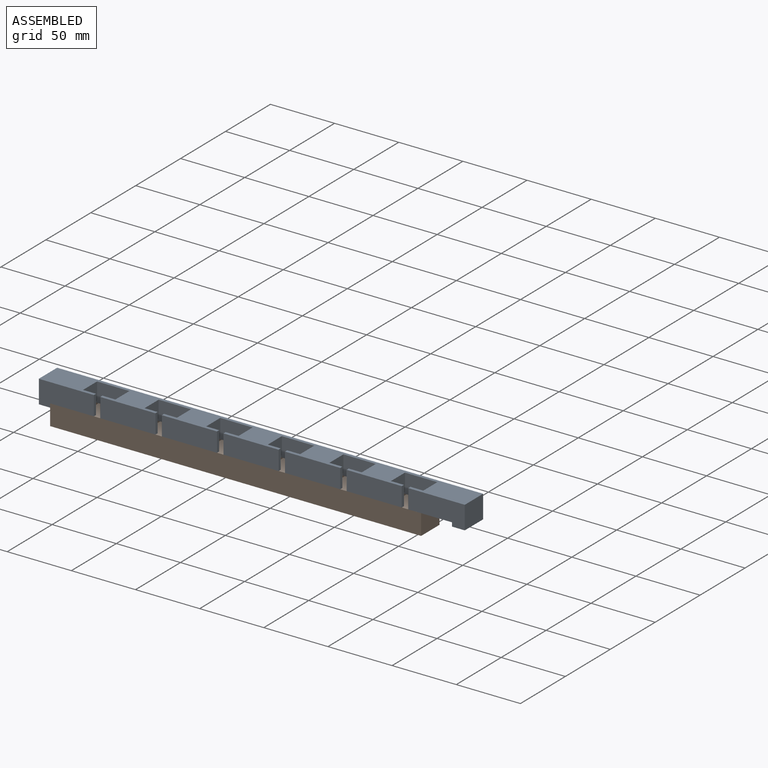
[diagram: assembled view]
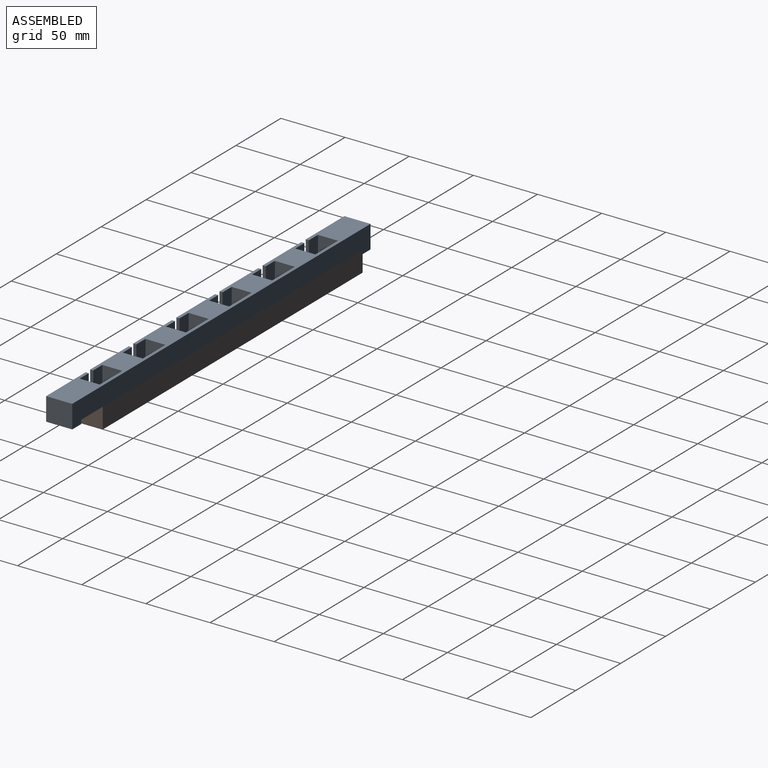
[diagram: assembled view, second angle]
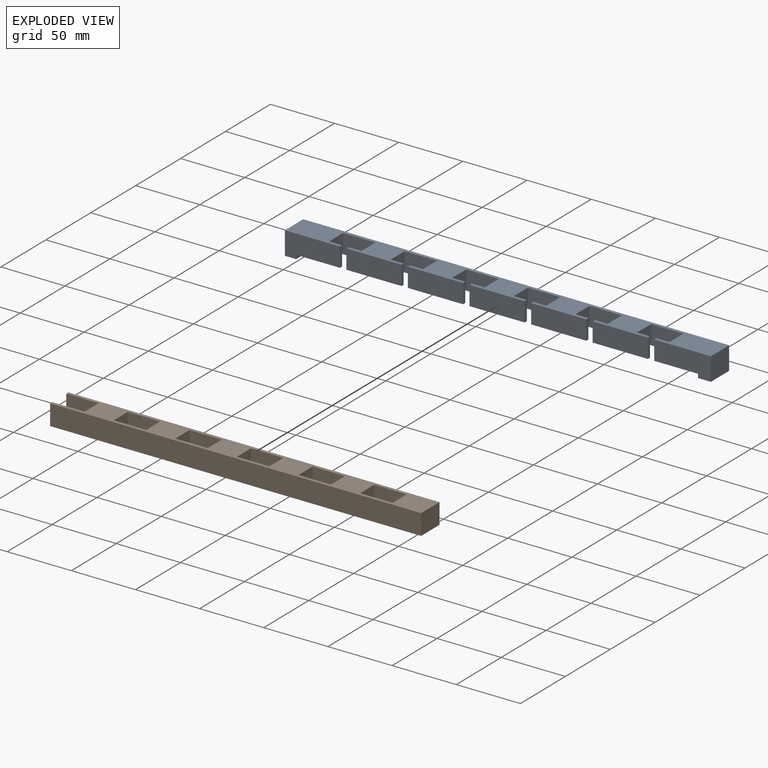
[diagram: exploded view]
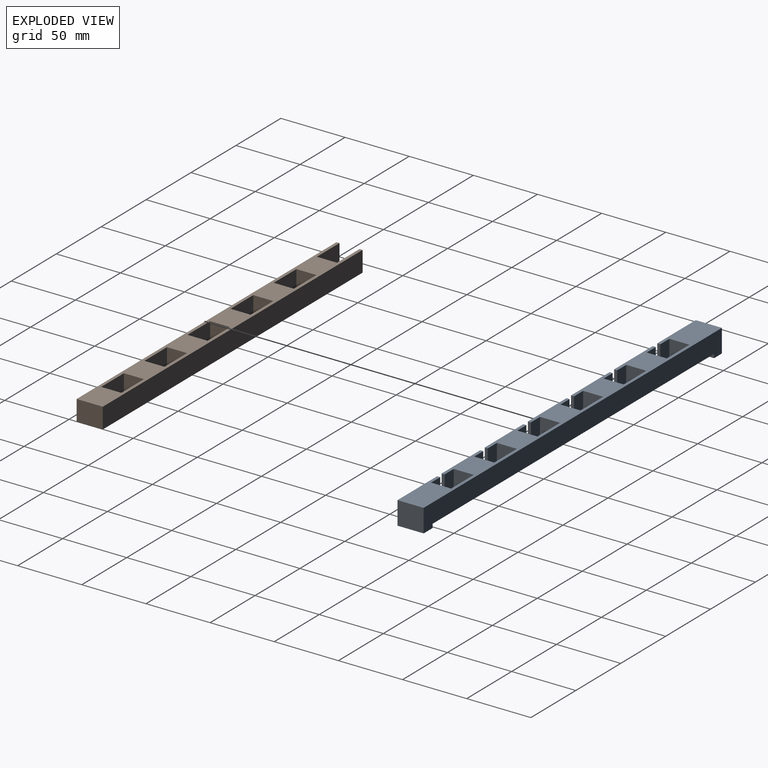
[diagram: exploded view, second angle]
ASSEMBLY  parts=2 mates=3
PART A: 70 faces, bbox 332x20.4x18 mm
  f0: plane 313.2x20.4mm, normal (0,0,-1), area 3584.2mm2, adj f1,f2,f3,f4,f5,f6,f7,f8
  f1: plane 42.9x18mm, normal (0,-1,0), area 669.9mm2, adj f0,f13,f40,f52,f53,f69
  f2: plane 43x15mm, normal (0,-1,0), area 645mm2, adj f0,f13,f41,f42
  f3: plane 43x15mm, normal (0,-1,0), area 645mm2, adj f0,f13,f43,f44
  f4: plane 43x15mm, normal (0,-1,0), area 645mm2, adj f0,f13,f45,f48
  f5: plane 43x15mm, normal (0,-1,0), area 645mm2, adj f0,f13,f46,f49
  f6: plane 43x15mm, normal (0,-1,0), area 645mm2, adj f0,f13,f47,f50
  f7: plane 15x12.1mm, normal (0,1,0), area 153.5mm2, adj f0,f13,f17,f50,f58
  f8: plane 15x12.1mm, normal (0,1,0), area 153.5mm2, adj f0,f13,f21,f48,f62
  f9: plane 15x12.1mm, normal (0,1,0), area 153.5mm2, adj f0,f13,f25,f46,f60
  f10: plane 15x12.1mm, normal (0,1,0), area 153.5mm2, adj f0,f13,f29,f44,f64
  f11: plane 15x12.1mm, normal (0,1,0), area 153.5mm2, adj f0,f13,f33,f42,f66
  f12: plane 15x12.1mm, normal (0,1,0), area 153.5mm2, adj f0,f13,f37,f40,f68
  f13: plane 332x20.4mm, normal (0,0,1), area 4342.1mm2, adj f1,f2,f3,f4,f5,f6,f7,f8
  f14: plane 44.1x18mm, normal (0,-1,0), area 691.5mm2, adj f0,f13,f51,f54,f55,f56
  f15: plane 332x18mm, normal (0,1,0), area 5036.4mm2, adj f0,f13,f52,f53,f54,f55,f56,f69
  f16: plane 29.2x15mm, normal (0,-1,0), area 382mm2, adj f0,f13,f17,f19,f57,f58
  f17: plane 15.6x13mm, normal (1,0,0), area 202.8mm2, adj f7,f13,f16,f58
  f18: plane 15x12.1mm, normal (0,1,0), area 153.5mm2, adj f0,f13,f19,f51,f57
  f19: plane 15.6x13mm, normal (-1,0,0), area 202.8mm2, adj f13,f16,f18,f57
  f20: plane 29.2x15mm, normal (0,-1,0), area 382mm2, adj f0,f13,f21,f23,f61,f62
  f21: plane 15.6x13mm, normal (1,0,0), area 202.8mm2, adj f8,f13,f20,f62
  f22: plane 15x12.1mm, normal (0,1,0), area 153.5mm2, adj f0,f13,f23,f49,f61
  f23: plane 15.6x13mm, normal (-1,0,0), area 202.8mm2, adj f13,f20,f22,f61
  f24: plane 29.2x15mm, normal (0,-1,0), area 382mm2, adj f0,f13,f25,f27,f59,f60
  f25: plane 15.6x13mm, normal (1,0,0), area 202.8mm2, adj f9,f13,f24,f60
  f26: plane 15x12.1mm, normal (0,1,0), area 153.5mm2, adj f0,f13,f27,f47,f59
  f27: plane 15.6x13mm, normal (-1,0,0), area 202.8mm2, adj f13,f24,f26,f59
  f28: plane 29.2x15mm, normal (0,-1,0), area 382mm2, adj f0,f13,f29,f31,f63,f64
  f29: plane 15.6x13mm, normal (1,0,0), area 202.8mm2, adj f10,f13,f28,f64
  f30: plane 15x12.1mm, normal (0,1,0), area 153.5mm2, adj f0,f13,f31,f45,f63
  f31: plane 15.6x13mm, normal (-1,0,0), area 202.8mm2, adj f13,f28,f30,f63
  f32: plane 29.2x15mm, normal (0,-1,0), area 382mm2, adj f0,f13,f33,f35,f65,f66
  f33: plane 15.6x13mm, normal (1,0,0), area 202.8mm2, adj f11,f13,f32,f66
  f34: plane 15x12.1mm, normal (0,1,0), area 153.5mm2, adj f0,f13,f35,f43,f65
  f35: plane 15.6x13mm, normal (-1,0,0), area 202.8mm2, adj f13,f32,f34,f65
  f36: plane 29.2x15mm, normal (0,-1,0), area 382mm2, adj f0,f13,f37,f39,f67,f68
  f37: plane 15.6x13mm, normal (1,0,0), area 202.8mm2, adj f12,f13,f36,f68
  f38: plane 15x12.1mm, normal (0,1,0), area 153.5mm2, adj f0,f13,f39,f41,f67
  f39: plane 15.6x13mm, normal (-1,0,0), area 202.8mm2, adj f13,f36,f38,f67
  f40: plane 15x2.4mm, normal (1,0,0), area 36mm2, adj f0,f1,f12,f13
  f41: plane 15x2.4mm, normal (-1,0,0), area 36mm2, adj f0,f2,f13,f38
  f42: plane 15x2.4mm, normal (1,0,0), area 36mm2, adj f0,f2,f11,f13
  f43: plane 15x2.4mm, normal (-1,0,0), area 36mm2, adj f0,f3,f13,f34
  f44: plane 15x2.4mm, normal (1,0,0), area 36mm2, adj f0,f3,f10,f13
  f45: plane 15x2.4mm, normal (-1,0,0), area 36mm2, adj f0,f4,f13,f30
  f46: plane 15x2.4mm, normal (1,0,0), area 36mm2, adj f0,f5,f9,f13
  f47: plane 15x2.4mm, normal (-1,0,0), area 36mm2, adj f0,f6,f13,f26
  f48: plane 15x2.4mm, normal (1,0,0), area 36mm2, adj f0,f4,f8,f13
  f49: plane 15x2.4mm, normal (-1,0,0), area 36mm2, adj f0,f5,f13,f22
  f50: plane 15x2.4mm, normal (1,0,0), area 36mm2, adj f0,f6,f7,f13
  f51: plane 15x2.4mm, normal (-1,0,0), area 36mm2, adj f0,f13,f14,f18
  f52: plane 20.4x8.8mm, normal (0,0,-1), area 179.5mm2, adj f1,f15,f53,f69
  f53: plane 20.4x18mm, normal (-1,0,0), area 367.2mm2, adj f1,f13,f15,f52
  f54: plane 20.4x3mm, normal (-1,0,0), area 61.2mm2, adj f0,f14,f15,f55
  f55: plane 20.4x10mm, normal (0,0,-1), area 204mm2, adj f14,f15,f54,f56
  f56: plane 20.4x18mm, normal (1,0,0), area 367.2mm2, adj f13,f14,f15,f55
  f57: plane 15.6x2mm, normal (-0.71,0,-0.71), area 44.1mm2, adj f0,f16,f18,f19
  f58: plane 15.6x2mm, normal (0.71,0,-0.71), area 44.1mm2, adj f0,f7,f16,f17
  f59: plane 15.6x2mm, normal (-0.71,0,-0.71), area 44.1mm2, adj f0,f24,f26,f27
  f60: plane 15.6x2mm, normal (0.71,0,-0.71), area 44.1mm2, adj f0,f9,f24,f25
  f61: plane 15.6x2mm, normal (-0.71,0,-0.71), area 44.1mm2, adj f0,f20,f22,f23
  f62: plane 15.6x2mm, normal (0.71,0,-0.71), area 44.1mm2, adj f0,f8,f20,f21
  f63: plane 15.6x2mm, normal (-0.71,0,-0.71), area 44.1mm2, adj f0,f28,f30,f31
  f64: plane 15.6x2mm, normal (0.71,0,-0.71), area 44.1mm2, adj f0,f10,f28,f29
  f65: plane 15.6x2mm, normal (-0.71,0,-0.71), area 44.1mm2, adj f0,f32,f34,f35
  f66: plane 15.6x2mm, normal (0.71,0,-0.71), area 44.1mm2, adj f0,f11,f32,f33
  f67: plane 15.6x2mm, normal (-0.71,0,-0.71), area 44.1mm2, adj f0,f36,f38,f39
  f68: plane 15.6x2mm, normal (0.71,0,-0.71), area 44.1mm2, adj f0,f12,f36,f37
  f69: plane 20.4x3mm, normal (1,0,0), area 61.2mm2, adj f0,f1,f15,f52
PART B: 30 faces, bbox 289.2x20.4x16 mm
  f0: plane 16x2.4mm, normal (-1,0,0), area 38.4mm2, adj f1,f2,f6,f28
  f1: plane 289.2x20.4mm, normal (0,0,1), area 3541mm2, adj f0,f3,f4,f5,f6,f7,f8,f9
  f2: plane 289.2x20.4mm, normal (0,0,-1), area 3541mm2, adj f0,f3,f4,f5,f6,f7,f8,f9
  f3: plane 16x2.4mm, normal (-1,0,0), area 38.4mm2, adj f1,f2,f5,f27
  f4: plane 20.4x16mm, normal (1,0,0), area 326.4mm2, adj f1,f2,f5,f6
  f5: plane 289.2x16mm, normal (0,-1,0), area 4627.2mm2, adj f1,f2,f3,f4
  f6: plane 289.2x16mm, normal (0,1,0), area 4627.2mm2, adj f0,f1,f2,f4
  f7: plane 25.2x16mm, normal (0,1,0), area 403.2mm2, adj f1,f2,f8,f10
  f8: plane 16x15.6mm, normal (1,0,0), area 249.6mm2, adj f1,f2,f7,f9
  f9: plane 25.2x16mm, normal (0,-1,0), area 403.2mm2, adj f1,f2,f8,f10
  f10: plane 16x15.6mm, normal (-1,0,0), area 249.6mm2, adj f1,f2,f7,f9
  f11: plane 25.2x16mm, normal (0,1,0), area 403.2mm2, adj f1,f2,f12,f14
  f12: plane 16x15.6mm, normal (1,0,0), area 249.6mm2, adj f1,f2,f11,f13
  f13: plane 25.2x16mm, normal (0,-1,0), area 403.2mm2, adj f1,f2,f12,f14
  f14: plane 16x15.6mm, normal (-1,0,0), area 249.6mm2, adj f1,f2,f11,f13
  f15: plane 25.2x16mm, normal (0,1,0), area 403.2mm2, adj f1,f2,f16,f18
  f16: plane 16x15.6mm, normal (1,0,0), area 249.6mm2, adj f1,f2,f15,f17
  f17: plane 25.2x16mm, normal (0,-1,0), area 403.2mm2, adj f1,f2,f16,f18
  f18: plane 16x15.6mm, normal (-1,0,0), area 249.6mm2, adj f1,f2,f15,f17
  f19: plane 25.2x16mm, normal (0,1,0), area 403.2mm2, adj f1,f2,f20,f22
  f20: plane 16x15.6mm, normal (1,0,0), area 249.6mm2, adj f1,f2,f19,f21
  f21: plane 25.2x16mm, normal (0,-1,0), area 403.2mm2, adj f1,f2,f20,f22
  f22: plane 16x15.6mm, normal (-1,0,0), area 249.6mm2, adj f1,f2,f19,f21
  f23: plane 25.2x16mm, normal (0,1,0), area 403.2mm2, adj f1,f2,f24,f26
  f24: plane 16x15.6mm, normal (1,0,0), area 249.6mm2, adj f1,f2,f23,f25
  f25: plane 25.2x16mm, normal (0,-1,0), area 403.2mm2, adj f1,f2,f24,f26
  f26: plane 16x15.6mm, normal (-1,0,0), area 249.6mm2, adj f1,f2,f23,f25
  f27: plane 25.2x16mm, normal (0,1,0), area 403.2mm2, adj f1,f2,f3,f29
  f28: plane 25.2x16mm, normal (0,-1,0), area 403.2mm2, adj f0,f1,f2,f29
  f29: plane 16x15.6mm, normal (-1,0,0), area 249.6mm2, adj f1,f2,f27,f28
PLACE A t=(-128.97,32.67,-48.83)mm
PLACE B t=(-130.19,32.67,-35.6)mm
MATE planar A.f6 <-> B.f5  axis (0,-1,0) through (122.43,12.27,-41.33)mm
MATE parallel A.f0 <-> B.f1  axis (0,0,-1) through (-113.12,12.27,-48.83)mm
MATE planar A.f0 <-> B.f1  axis (0,0,-1) through (26.43,22.65,-48.83)mm
